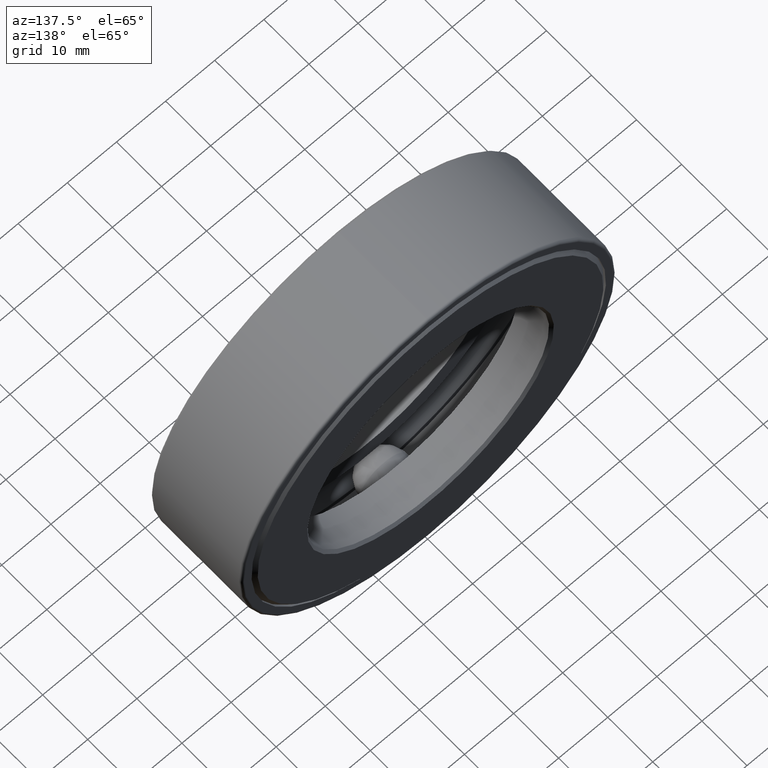
[diagram: clean part render]
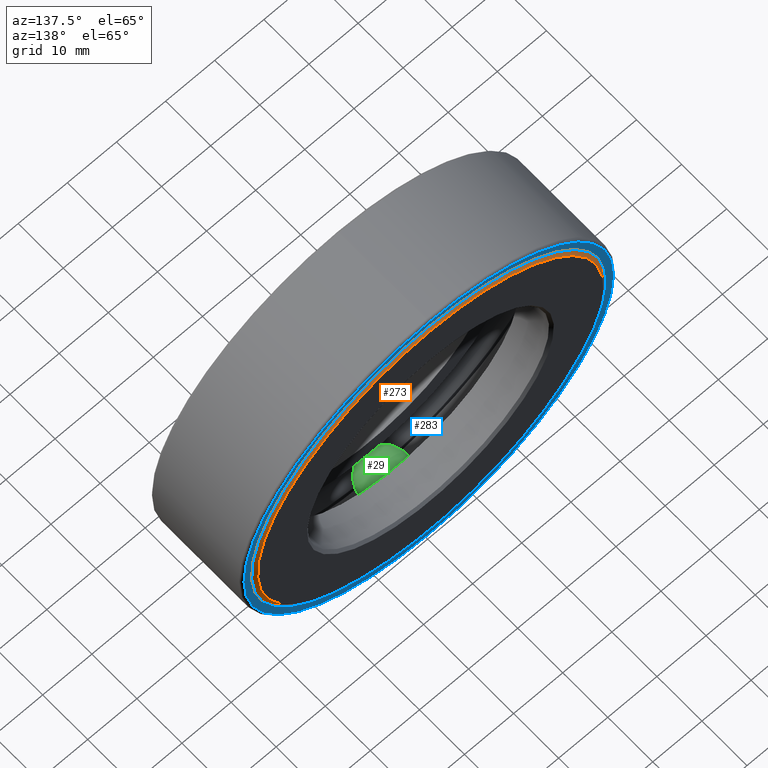
[diagram: same view with three faces highlighted in distinct colors, each labeled with its STEP entity id]
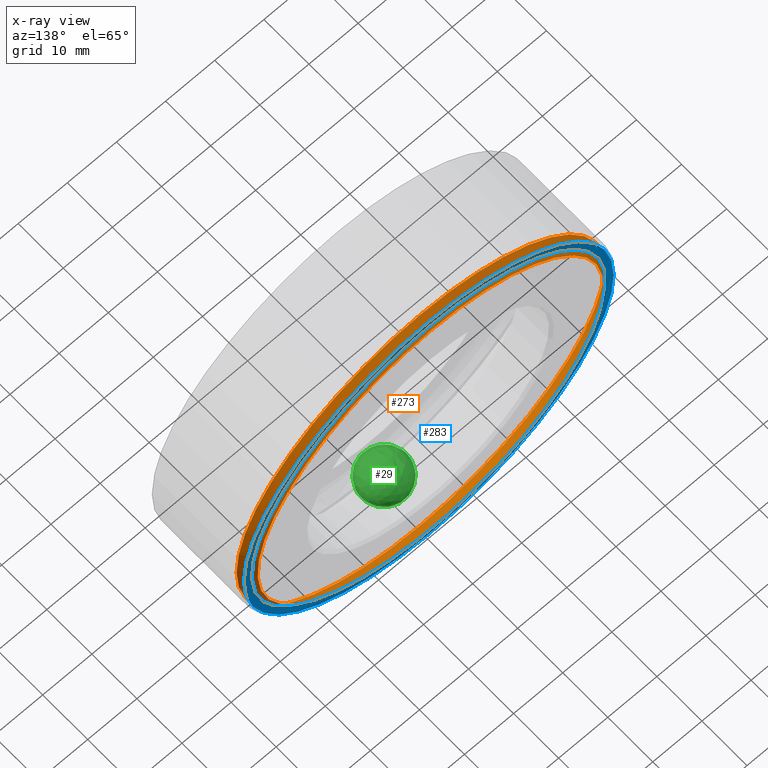
[diagram: x-ray of the same camera — body ghosted, the three highlighted faces saturated]
A machine part, auxiliary view with three faces highlighted in distinct colors.
The next image is the same camera in x-ray (body ghosted, the three faces saturated) — at least one of them is partly hidden behind the body in this view.
Their STEP definitions:

[orange] entity #273 — the highlighted conical surface has half-angle 45 deg.
#4 = VERTEX_POINT ( 'NONE', #190 ) ;
#21 = AXIS2_PLACEMENT_3D ( 'NONE', #37, #31, #460 ) ;
#28 = VERTEX_POINT ( 'NONE', #45 ) ;
#31 = DIRECTION ( 'NONE',  ( -0.0000000000000000000, 1.000000000000000000, -0.0000000000000000000 ) ) ;
#37 = CARTESIAN_POINT ( 'NONE',  ( 0.0000000000000000000, 0.7245000000000004800, 0.0000000000000000000 ) ) ;
#45 = CARTESIAN_POINT ( 'NONE',  ( 0.0000000000000000000, 0.7245000000000004800, 1.472999999999999900 ) ) ;
#94 = FACE_BOUND ( 'NONE', #296, .T. ) ;
#108 = DIRECTION ( 'NONE',  ( -0.0000000000000000000, 1.000000000000000000, -0.0000000000000000000 ) ) ;
#119 = AXIS2_PLACEMENT_3D ( 'NONE', #148, #108, #150 ) ;
#148 = CARTESIAN_POINT ( 'NONE',  ( 0.0000000000000000000, 0.8124999999999998900, 0.0000000000000000000 ) ) ;
#150 = DIRECTION ( 'NONE',  ( 0.0000000000000000000, 0.0000000000000000000, 1.000000000000000000 ) ) ;
#175 = ORIENTED_EDGE ( 'NONE', *, *, #390, .T. ) ;
#190 = CARTESIAN_POINT ( 'NONE',  ( 0.0000000000000000000, 0.8124999999999998900, 1.385000000000000000 ) ) ;
#209 = EDGE_CURVE ( 'NONE', #4, #4, #482, .T. ) ;
#273 = ADVANCED_FACE ( 'NONE', ( #378, #94 ), #394, .T. ) ;
#296 = EDGE_LOOP ( 'NONE', ( #501 ) ) ;
#321 = CIRCLE ( 'NONE', #21, 1.472999999999999900 ) ;
#378 = FACE_OUTER_BOUND ( 'NONE', #481, .T. ) ;
#390 = EDGE_CURVE ( 'NONE', #28, #28, #321, .T. ) ;
#394 = CONICAL_SURFACE ( 'NONE', #477, 1.385000000000000000, 0.7853981633974498300 ) ;
#446 = DIRECTION ( 'NONE',  ( 0.0000000000000000000, -1.000000000000000000, 0.0000000000000000000 ) ) ;
#460 = DIRECTION ( 'NONE',  ( 0.0000000000000000000, 0.0000000000000000000, 1.000000000000000000 ) ) ;
#477 = AXIS2_PLACEMENT_3D ( 'NONE', #583, #446, #587 ) ;
#481 = EDGE_LOOP ( 'NONE', ( #175 ) ) ;
#482 = CIRCLE ( 'NONE', #119, 1.385000000000000000 ) ;
#501 = ORIENTED_EDGE ( 'NONE', *, *, #209, .F. ) ;
#583 = CARTESIAN_POINT ( 'NONE',  ( 0.0000000000000000000, 0.8124999999999998900, 0.0000000000000000000 ) ) ;
#587 = DIRECTION ( 'NONE',  ( 0.0000000000000000000, 0.0000000000000000000, -1.000000000000000000 ) ) ;

[blue] entity #283 — the highlighted planar face has unit normal (0, -1, 0).
#7 = AXIS2_PLACEMENT_3D ( 'NONE', #551, #312, #440 ) ;
#48 = VERTEX_POINT ( 'NONE', #425 ) ;
#81 = DIRECTION ( 'NONE',  ( 0.0000000000000000000, -1.000000000000000000, 0.0000000000000000000 ) ) ;
#113 = AXIS2_PLACEMENT_3D ( 'NONE', #217, #317, #371 ) ;
#116 = EDGE_LOOP ( 'NONE', ( #528 ) ) ;
#123 = CIRCLE ( 'NONE', #7, 1.480000000000000000 ) ;
#217 = CARTESIAN_POINT ( 'NONE',  ( 0.0000000000000000000, 0.7974999999999998800, 0.0000000000000000000 ) ) ;
#261 = EDGE_LOOP ( 'NONE', ( #271 ) ) ;
#271 = ORIENTED_EDGE ( 'NONE', *, *, #524, .F. ) ;
#279 = VERTEX_POINT ( 'NONE', #563 ) ;
#283 = ADVANCED_FACE ( 'NONE', ( #416, #431 ), #498, .F. ) ;
#300 = EDGE_CURVE ( 'NONE', #48, #48, #123, .T. ) ;
#312 = DIRECTION ( 'NONE',  ( -0.0000000000000000000, 1.000000000000000000, -0.0000000000000000000 ) ) ;
#317 = DIRECTION ( 'NONE',  ( -0.0000000000000000000, 1.000000000000000000, -0.0000000000000000000 ) ) ;
#341 = CIRCLE ( 'NONE', #113, 1.420000000000000200 ) ;
#371 = DIRECTION ( 'NONE',  ( 0.0000000000000000000, 0.0000000000000000000, 1.000000000000000000 ) ) ;
#405 = CARTESIAN_POINT ( 'NONE',  ( 0.0000000000000000000, 0.7974999999999998800, 0.0000000000000000000 ) ) ;
#416 = FACE_BOUND ( 'NONE', #261, .T. ) ;
#425 = CARTESIAN_POINT ( 'NONE',  ( 0.0000000000000000000, 0.7974999999999998800, 1.480000000000000000 ) ) ;
#426 = AXIS2_PLACEMENT_3D ( 'NONE', #405, #81, #494 ) ;
#431 = FACE_OUTER_BOUND ( 'NONE', #116, .T. ) ;
#440 = DIRECTION ( 'NONE',  ( 0.0000000000000000000, 0.0000000000000000000, 1.000000000000000000 ) ) ;
#494 = DIRECTION ( 'NONE',  ( 0.0000000000000000000, -0.0000000000000000000, -1.000000000000000000 ) ) ;
#498 = PLANE ( 'NONE',  #426 ) ;
#524 = EDGE_CURVE ( 'NONE', #279, #279, #341, .T. ) ;
#528 = ORIENTED_EDGE ( 'NONE', *, *, #300, .T. ) ;
#551 = CARTESIAN_POINT ( 'NONE',  ( 0.0000000000000000000, 0.7974999999999998800, 0.0000000000000000000 ) ) ;
#563 = CARTESIAN_POINT ( 'NONE',  ( 0.0000000000000000000, 0.7974999999999998800, 1.420000000000000200 ) ) ;

[green] entity #29 — the highlighted spherical surface has radius 4.7625 mm.
#29 = ADVANCED_FACE ( 'NONE', ( ), #367, .T. ) ;
#267 = DIRECTION ( 'NONE',  ( 1.047444401652939500E-014, 0.0000000000000000000, 1.000000000000000000 ) ) ;
#367 = SPHERICAL_SURFACE ( 'NONE', #435, 0.1874999999999999400 ) ;
#435 = AXIS2_PLACEMENT_3D ( 'NONE', #492, #550, #267 ) ;
#492 = CARTESIAN_POINT ( 'NONE',  ( -1.344394889521548400E-014, 0.4062499999999997800, -1.283499999999999900 ) ) ;
#550 = DIRECTION ( 'NONE',  ( 1.000000000000000000, 0.0000000000000000000, -1.047444401652939500E-014 ) ) ;